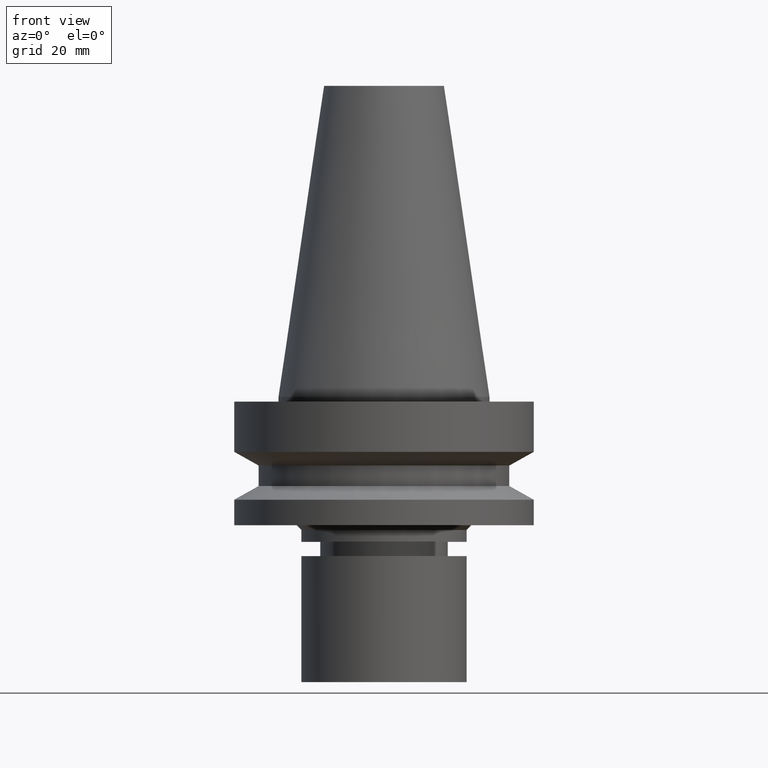
[diagram: clean part render]
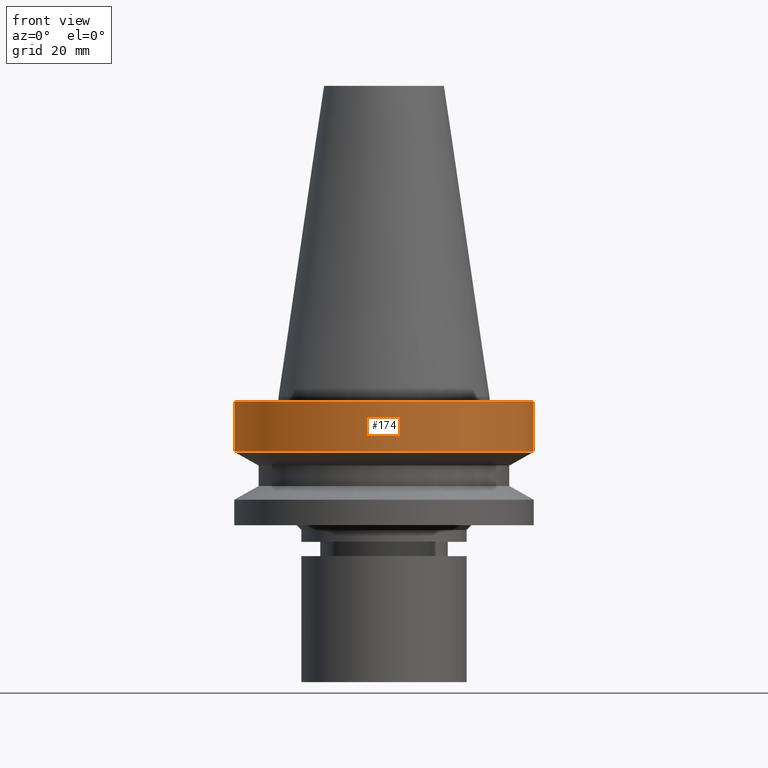
[diagram: same view with one face highlighted and labeled with its STEP entity id]
A machine part, front view. The second image highlights one B-rep face of the part: STEP entity #174.
In plain terms, the highlighted cylindrical surface (bore or boss wall) has radius 31.5 mm, axis along (0, -0, -1).
Its self-contained STEP definition (entity closure, byte-faithful):
#154=EDGE_CURVE('Unnamed[1]',#323,#323,#324,.T.);
#163=EDGE_CURVE('Unnamed[1]',#336,#336,#337,.T.);
#174=ADVANCED_FACE('Unnamed[1]',(#353,#354),#355,.T.);
#323=VERTEX_POINT('',#529);
#324=CIRCLE('',#530,31.4999999999996);
#336=VERTEX_POINT('',#546);
#337=CIRCLE('',#547,31.5000000000003);
#353=FACE_BOUND('',#567,.T.);
#354=FACE_BOUND('',#568,.T.);
#355=CYLINDRICAL_SURFACE('',#569,31.5);
#529=CARTESIAN_POINT('',(6.12323399573568E-017,31.4999999999997,-0.999999999999825));
#530=AXIS2_PLACEMENT_3D('',#716,#717,#718);
#546=CARTESIAN_POINT('',(7.08182973902924E-016,31.5000000000004,-11.5655056526664));
#547=AXIS2_PLACEMENT_3D('',#730,#731,#732);
#567=EDGE_LOOP('',(#749));
#568=EDGE_LOOP('',(#750));
#569=AXIS2_PLACEMENT_3D('',#751,#752,#753);
#716=CARTESIAN_POINT('',(6.12323399573559E-017,4.09926346953707E-014,-0.999999999999808));
#717=DIRECTION('',(6.12323399573677E-017,-5.36731610657134E-016,-1.0));
#718=DIRECTION('',(2.80381797188541E-032,1.0,-5.36731610657134E-016));
#730=CARTESIAN_POINT('',(7.08182973902923E-016,3.5321793829008E-014,-11.5655056526663));
#731=DIRECTION('',(6.12323399573676E-017,-5.36731610657134E-016,-1.0));
#732=DIRECTION('',(2.80381797188541E-032,1.0,-5.36731610657134E-016));
#749=ORIENTED_EDGE('',*,*,#163,.F.);
#750=ORIENTED_EDGE('',*,*,#154,.T.);
#751=CARTESIAN_POINT('',(3.84707656930139E-016,3.81572142621893E-014,-6.28275282633307));
#752=DIRECTION('',(6.12323399573677E-017,-5.36731610657134E-016,-1.0));
#753=DIRECTION('',(2.80381797188541E-032,1.0,-5.36731610657134E-016));